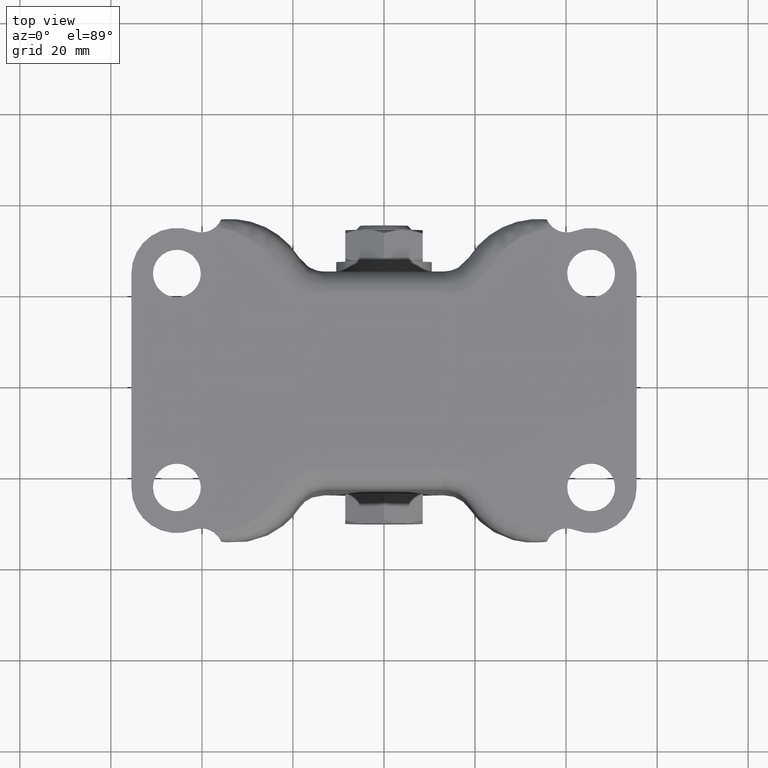
[diagram: clean part render]
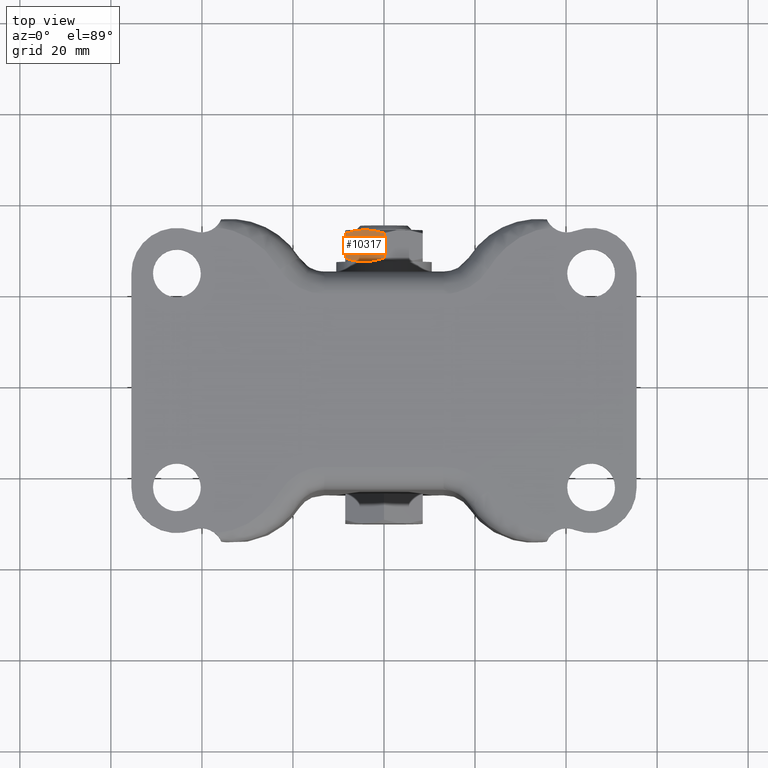
[diagram: same view with one face highlighted and labeled with its STEP entity id]
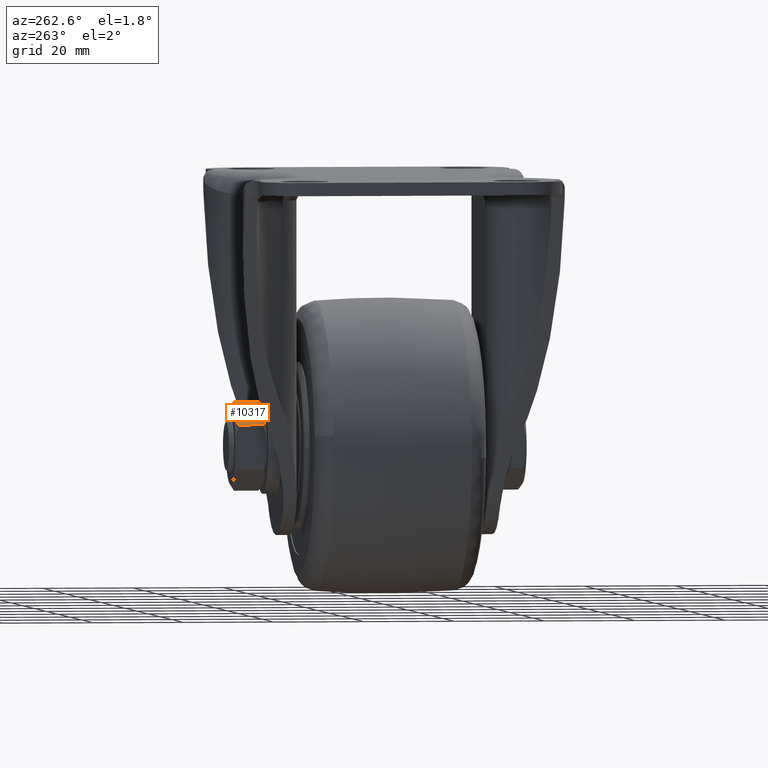
[diagram: same view with one face highlighted and labeled with its STEP entity id]
A machine part, top view. The second image highlights one B-rep face of the part: STEP entity #10317.
A second angle (auxiliary view) of the same face is appended — the face is thin or edge-on in the first view.
In plain terms, the highlighted face is a freeform B-spline surface patch.
Its self-contained STEP definition (entity closure, byte-faithful):
#9826=CARTESIAN_POINT('',(0.000094999995781,27.759190000265502,-49.685044999999903));
#9827=VERTEX_POINT('',#9826);
#9847=CARTESIAN_POINT('',(-4.225494612953004,27.0,-52.124690157292292));
#9848=VERTEX_POINT('',#9847);
#9849=CARTESIAN_POINT('',(-4.225494612953004,27.0,-52.124690157292292));
#9850=CARTESIAN_POINT('',(-3.876800689167205,27.000777749735509,-51.923371638348947));
#9851=CARTESIAN_POINT('',(-3.527047467299661,27.018148699635660,-51.721441533408850));
#9852=CARTESIAN_POINT('',(-3.086134733242500,27.060575190253392,-51.466880462656761));
#9853=CARTESIAN_POINT('',(-2.995952502598115,27.070322086725209,-51.414813730574892));
#9854=CARTESIAN_POINT('',(-2.815452473770449,27.091939479806850,-51.310601996460612));
#9855=CARTESIAN_POINT('',(-2.725068411252189,27.103821575851480,-51.258418736698857));
#9856=CARTESIAN_POINT('',(-2.454961748670439,27.142409083332179,-51.102472591502803));
#9857=CARTESIAN_POINT('',(-2.275908313378458,27.172094828162841,-50.999096048506757));
#9858=CARTESIAN_POINT('',(-1.385313609101811,27.338708612743940,-50.484910986440909));
#9859=CARTESIAN_POINT('',(-0.687718590815052,27.529914859348668,-50.082154338493069));
#9860=CARTESIAN_POINT('',(0.000094999995795,27.759190000265431,-49.685044999999903));
#9861=B_SPLINE_CURVE_WITH_KNOTS('',3,(#9849,#9850,#9851,#9852,#9853,#9854,#9855,#9856,#9857,#9858,#9859,#9860),.UNSPECIFIED.,.F.,.U.,(4,2,2,2,2,4),(0.503348218318569,0.624999999999999,0.656249999999999,0.687499999999999,0.749999999999999,1.0),.UNSPECIFIED.);
#9862=EDGE_CURVE('',#9848,#9827,#9861,.T.);
#9913=CARTESIAN_POINT('',(-8.499905000003988,27.759142460881449,-54.592521999999903));
#9914=VERTEX_POINT('',#9913);
#9930=CARTESIAN_POINT('',(-4.274458004548760,27.0,-52.152959182950909));
#9931=VERTEX_POINT('',#9930);
#9945=CARTESIAN_POINT('',(-8.499905000004008,27.759142460881399,-54.592521999999917));
#9946=CARTESIAN_POINT('',(-8.326550427913929,27.701358063808680,-54.492435697014393));
#9947=CARTESIAN_POINT('',(-8.152409280647838,27.645960438197360,-54.391895264665919));
#9948=CARTESIAN_POINT('',(-7.802356717517023,27.540536862434539,-54.189792334977056));
#9949=CARTESIAN_POINT('',(-7.626251239945075,27.490466657819489,-54.088117796064310));
#9950=CARTESIAN_POINT('',(-7.097856893349483,27.350023740177441,-53.783049195729227));
#9951=CARTESIAN_POINT('',(-6.744776836803470,27.269195527299729,-53.579198342004737));
#9952=CARTESIAN_POINT('',(-6.036711879717917,27.137377564352612,-53.170396872427858));
#9953=CARTESIAN_POINT('',(-5.681725170916683,27.086416139830789,-52.965445212575183));
#9954=CARTESIAN_POINT('',(-4.976311566176804,27.018416201326239,-52.558174501898932));
#9955=CARTESIAN_POINT('',(-4.625922676938028,27.000782330713641,-52.355877394252467));
#9956=CARTESIAN_POINT('',(-4.274458004369605,27.000000087310660,-52.152959182847511));
#9957=B_SPLINE_CURVE_WITH_KNOTS('',3,(#9945,#9946,#9947,#9948,#9949,#9950,#9951,#9952,#9953,#9954,#9955,#9956),.UNSPECIFIED.,.F.,.U.,(4,2,2,2,2,4),(0.0,0.062500000000001,0.125000000000001,0.250000000000001,0.375000000000000,0.497653318367152),.UNSPECIFIED.);
#9958=EDGE_CURVE('',#9914,#9931,#9957,.T.);
#9999=CARTESIAN_POINT('',(-4.274458004542714,34.0,-52.152959182947413));
#10000=VERTEX_POINT('',#9999);
#10014=CARTESIAN_POINT('',(-4.225494612952795,34.0,-52.124690157292193));
#10015=VERTEX_POINT('',#10014);
#10016=CARTESIAN_POINT('',(-4.225494612952795,34.0,-52.124690157292193));
#10017=CARTESIAN_POINT('',(-4.274458004542714,34.0,-52.152959182947413));
#10018=QUASI_UNIFORM_CURVE('',1,(#10016,#10017),.UNSPECIFIED.,.F.,.U.);
#10019=EDGE_CURVE('',#10015,#10000,#10018,.T.);
#10123=CARTESIAN_POINT('',(-8.499905000003988,33.240857539118750,-54.592521999999903));
#10124=VERTEX_POINT('',#10123);
#10142=CARTESIAN_POINT('',(-4.274458004542714,34.0,-52.152959182947413));
#10143=CARTESIAN_POINT('',(-4.623102795112736,33.999222336955391,-52.354249334817133));
#10144=CARTESIAN_POINT('',(-4.972806706069583,33.981856219449753,-52.556150970091323));
#10145=CARTESIAN_POINT('',(-5.413670025872079,33.939440206004832,-52.810683511511847));
#10146=CARTESIAN_POINT('',(-5.503852324446197,33.929694462924772,-52.862750282812968));
#10147=CARTESIAN_POINT('',(-5.684352506840194,33.908079350202712,-52.966962105588813));
#10148=CARTESIAN_POINT('',(-5.774736696723226,33.896198376717017,-53.019145438884642));
#10149=CARTESIAN_POINT('',(-6.044843817361906,33.857614163090673,-53.175091848539992));
#10150=CARTESIAN_POINT('',(-6.223897565575362,33.827930534469381,-53.278468572201348));
#10151=CARTESIAN_POINT('',(-7.114493851605519,33.661326896849467,-53.792654547492923));
#10152=CARTESIAN_POINT('',(-7.812090173536335,33.470127321657102,-54.195411948100023));
#10153=CARTESIAN_POINT('',(-8.499905000004006,33.240857539118807,-54.592521999999917));
#10154=B_SPLINE_CURVE_WITH_KNOTS('',3,(#10142,#10143,#10144,#10145,#10146,#10147,#10148,#10149,#10150,#10151,#10152,#10153),.UNSPECIFIED.,.F.,.U.,(4,2,2,2,2,4),(0.503365454759114,0.624999999999993,0.656249999999993,0.687499999999993,0.749999999999994,1.0),.UNSPECIFIED.);
#10155=EDGE_CURVE('',#10000,#10124,#10154,.T.);
#10199=CARTESIAN_POINT('',(0.000094999995781,33.240809999734701,-49.685044999999903));
#10200=VERTEX_POINT('',#10199);
#10201=CARTESIAN_POINT('',(0.000094999995783,33.240809999734701,-49.685044999999903));
#10202=CARTESIAN_POINT('',(-0.173259211402718,33.298595730894867,-49.785131094740073));
#10203=CARTESIAN_POINT('',(-0.347399980805789,33.353994769304393,-49.885671308929219));
#10204=CARTESIAN_POINT('',(-0.697451751350490,33.459421342391018,-50.087773781018328));
#10205=CARTESIAN_POINT('',(-0.873556841586200,33.509493142678721,-50.189448096302399));
#10206=CARTESIAN_POINT('',(-1.401950212160503,33.649941147754639,-50.494516133131327));
#10207=CARTESIAN_POINT('',(-1.755029691478969,33.730773114203430,-50.698366653593382));
#10208=CARTESIAN_POINT('',(-2.463093678739391,33.862599218040387,-51.107167563241489));
#10209=CARTESIAN_POINT('',(-2.818079995133530,33.913565030244087,-51.312118996537862));
#10210=CARTESIAN_POINT('',(-3.523542154247525,33.981578793356938,-51.719417740093412));
#10211=CARTESIAN_POINT('',(-3.873980274370710,33.999217580738140,-51.921743271202587));
#10212=CARTESIAN_POINT('',(-4.225494613129834,33.999999913945857,-52.124690157394433));
#10213=B_SPLINE_CURVE_WITH_KNOTS('',3,(#10201,#10202,#10203,#10204,#10205,#10206,#10207,#10208,#10209,#10210,#10211,#10212),.UNSPECIFIED.,.F.,.U.,(4,2,2,2,2,4),(0.0,0.062499999999998,0.124999999999997,0.249999999999996,0.374999999999995,0.497670559158595),.UNSPECIFIED.);
#10214=EDGE_CURVE('',#10200,#10015,#10213,.T.);
#10284=CARTESIAN_POINT('',(0.000094999995781,33.240809999734701,-49.685044999999903));
#10285=CARTESIAN_POINT('',(0.000094999995781,27.759190000265502,-49.685044999999903));
#10286=QUASI_UNIFORM_CURVE('',1,(#10284,#10285),.UNSPECIFIED.,.F.,.U.);
#10287=EDGE_CURVE('',#10200,#9827,#10286,.T.);
#10294=CARTESIAN_POINT('',(0.424669983521125,26.650350013567358,-49.439916533361547));
#10295=CARTESIAN_POINT('',(-8.924480211517096,26.650350013567358,-54.837650598267047));
#10296=CARTESIAN_POINT('',(0.424669983521125,34.349650174187282,-49.439916533361547));
#10297=CARTESIAN_POINT('',(-8.924480211517096,34.349650174187282,-54.837650598267047));
#10298=B_SPLINE_SURFACE_WITH_KNOTS('',1,1,((#10294,#10296),(#10295,#10297)),.UNSPECIFIED.,.F.,.F.,.U.,(2,2),(2,2),(0.0,10.795468605152090),(0.0,7.699300160619917),.UNSPECIFIED.);
#10299=ORIENTED_EDGE('',*,*,#10214,.T.);
#10300=ORIENTED_EDGE('',*,*,#10019,.T.);
#10301=ORIENTED_EDGE('',*,*,#10155,.T.);
#10302=CARTESIAN_POINT('',(-8.499905000003988,33.240857539118750,-54.592521999999903));
#10303=CARTESIAN_POINT('',(-8.499905000003988,27.759142460881449,-54.592521999999903));
#10304=QUASI_UNIFORM_CURVE('',1,(#10302,#10303),.UNSPECIFIED.,.F.,.U.);
#10305=EDGE_CURVE('',#10124,#9914,#10304,.T.);
#10306=ORIENTED_EDGE('',*,*,#10305,.T.);
#10307=ORIENTED_EDGE('',*,*,#9958,.T.);
#10308=CARTESIAN_POINT('',(-4.274458004548760,27.0,-52.152959182950909));
#10309=CARTESIAN_POINT('',(-4.225494612953004,27.0,-52.124690157292292));
#10310=QUASI_UNIFORM_CURVE('',1,(#10308,#10309),.UNSPECIFIED.,.F.,.U.);
#10311=EDGE_CURVE('',#9931,#9848,#10310,.T.);
#10312=ORIENTED_EDGE('',*,*,#10311,.T.);
#10313=ORIENTED_EDGE('',*,*,#9862,.T.);
#10314=ORIENTED_EDGE('',*,*,#10287,.F.);
#10315=EDGE_LOOP('',(#10299,#10300,#10301,#10306,#10307,#10312,#10313,#10314));
#10316=FACE_OUTER_BOUND('',#10315,.T.);
#10317=ADVANCED_FACE('',(#10316),#10298,.F.);